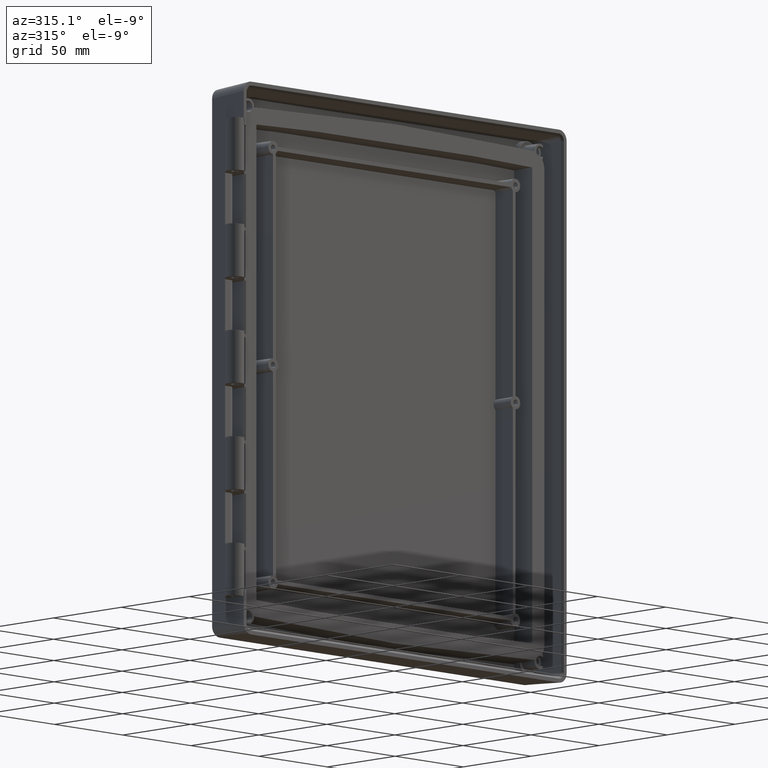
[diagram: clean part render]
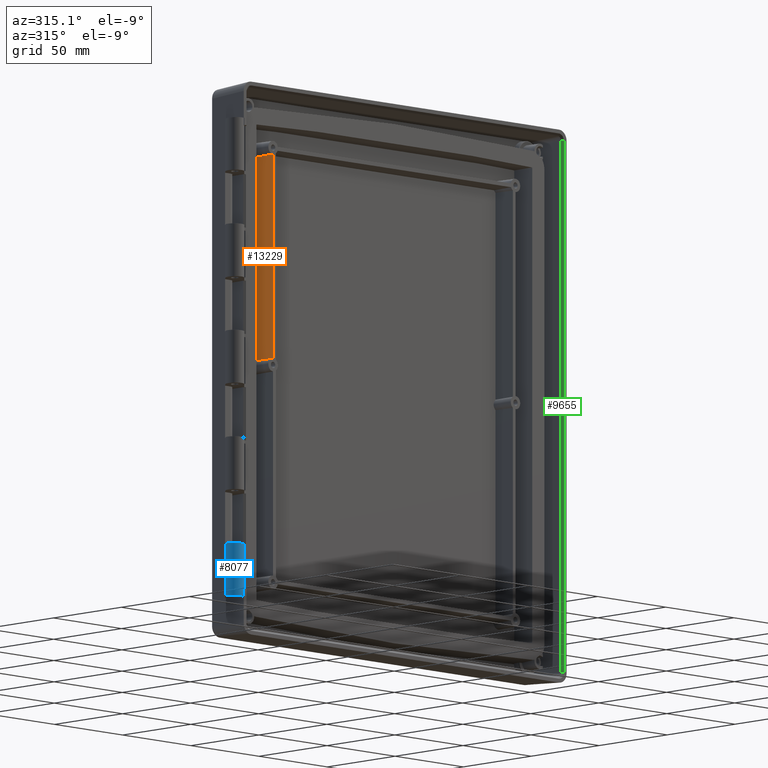
[diagram: same view with three faces highlighted in distinct colors, each labeled with its STEP entity id]
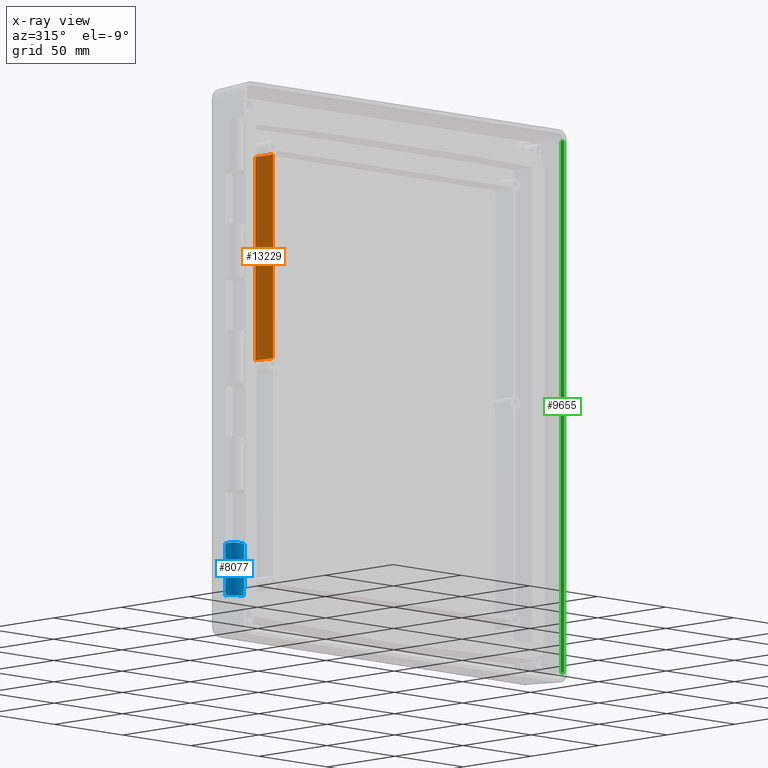
[diagram: x-ray of the same camera — body ghosted, the three highlighted faces saturated]
A machine part, auxiliary view with three faces highlighted in distinct colors.
The next image is the same camera in x-ray (body ghosted, the three faces saturated) — at least one of them is partly hidden behind the body in this view.
Their STEP definitions:

[orange] entity #13229 — the highlighted planar face has unit normal (-0.9998, -0.0175, 0).
#163=DIRECTION('',(0.E0,0.E0,-1.E0));
#164=VECTOR('',#163,1.069466839176E2);
#165=CARTESIAN_POINT('',(-8.921991636303E1,1.2599E1,1.106233419588E2));
#166=LINE('',#165,#164);
#5404=CARTESIAN_POINT('',(-8.921991636303E1,1.2599E1,1.106233419588E2));
#5405=CARTESIAN_POINT('',(-8.919531456273E1,1.118956380458E1,1.106458960446E2));
#5406=CARTESIAN_POINT('',(-8.914622203217E1,8.377054612737E0,1.106913173193E2));
#5407=CARTESIAN_POINT('',(-8.907291452086E1,4.177270102444E0,1.107604446341E2));
#5408=CARTESIAN_POINT('',(-8.902426759560E1,1.390289620731E0,1.108072289558E2));
#5409=CARTESIAN_POINT('',(-8.9E1,0.E0,1.108308071141E2));
#5435=DIRECTION('',(0.E0,0.E0,-1.E0));
#5436=VECTOR('',#5435,1.073616142282E2);
#5437=CARTESIAN_POINT('',(-8.9E1,0.E0,1.108308071141E2));
#5438=LINE('',#5437,#5436);
#5674=CARTESIAN_POINT('',(-8.921991636303E1,1.2599E1,3.676658041179E0));
#5675=CARTESIAN_POINT('',(-8.919531456273E1,1.118956380458E1,3.654103955431E0));
#5676=CARTESIAN_POINT('',(-8.914622203217E1,8.377054612737E0,3.608682680699E0));
#5677=CARTESIAN_POINT('',(-8.907291452086E1,4.177270102444E0,3.539555365864E0));
#5678=CARTESIAN_POINT('',(-8.902426759560E1,1.390289620731E0,3.492771044200E0));
#5679=CARTESIAN_POINT('',(-8.9E1,0.E0,3.469192885900E0));
#6712=CARTESIAN_POINT('',(-8.921991636303E1,1.2599E1,1.106233419588E2));
#6713=CARTESIAN_POINT('',(-8.921991636303E1,1.2599E1,3.676658041179E0));
#6714=VERTEX_POINT('',#6712);
#6715=VERTEX_POINT('',#6713);
#6729=VERTEX_POINT('',#5409);
#6742=VERTEX_POINT('',#5679);
#13215=CARTESIAN_POINT('',(-8.9E1,0.E0,1.206451589443E2));
#13216=DIRECTION('',(-9.998476951564E-1,-1.745240643728E-2,0.E0));
#13217=DIRECTION('',(0.E0,0.E0,-1.E0));
#13218=AXIS2_PLACEMENT_3D('',#13215,#13216,#13217);
#13219=PLANE('',#13218);
#13220=ORIENTED_EDGE('',*,*,#7523,.F.);
#13222=ORIENTED_EDGE('',*,*,#13221,.T.);
#13224=ORIENTED_EDGE('',*,*,#13223,.T.);
#13226=ORIENTED_EDGE('',*,*,#13225,.F.);
#13227=EDGE_LOOP('',(#13220,#13222,#13224,#13226));
#13228=FACE_OUTER_BOUND('',#13227,.F.);
#13229=ADVANCED_FACE('',(#13228),#13219,.T.);
#5410=B_SPLINE_CURVE_WITH_KNOTS('',3,(#5404,#5405,#5406,#5407,#5408,#5409),
.UNSPECIFIED.,.F.,.F.,(4,1,1,4),(0.E0,3.333333333333E-1,6.666666666667E-1,1.E0),
.UNSPECIFIED.);
#5680=B_SPLINE_CURVE_WITH_KNOTS('',3,(#5674,#5675,#5676,#5677,#5678,#5679),
.UNSPECIFIED.,.F.,.F.,(4,1,1,4),(0.E0,3.333333333333E-1,6.666666666667E-1,1.E0),
.UNSPECIFIED.);
#7523=EDGE_CURVE('',#6714,#6715,#166,.T.);
#13221=EDGE_CURVE('',#6714,#6729,#5410,.T.);
#13223=EDGE_CURVE('',#6729,#6742,#5438,.T.);
#13225=EDGE_CURVE('',#6715,#6742,#5680,.T.);

[blue] entity #8077 — the highlighted cylindrical surface (edge-blend (fillet) strip) has radius 4.9 mm, axis along (0, 0, -1).
#687=CARTESIAN_POINT('',(-1.236714999260E2,2.171787012678E-1,
-1.254297153929E2));
#688=CARTESIAN_POINT('',(-1.239530143235E2,-8.888304470473E-2,
-1.254457554093E2));
#689=CARTESIAN_POINT('',(-1.242467789355E2,-5.221114808791E-1,
-1.254684599496E2));
#690=CARTESIAN_POINT('',(-1.246349054390E2,-1.256088197796E0,
-1.255069260393E2));
#691=CARTESIAN_POINT('',(-1.248639186389E2,-2.003380272098E0,
-1.255460899574E2));
#692=CARTESIAN_POINT('',(-1.249746773096E2,-2.791133656298E0,
-1.255873743629E2));
#693=CARTESIAN_POINT('',(-1.249606209458E2,-3.734017482505E0,
-1.256367888104E2));
#694=CARTESIAN_POINT('',(-1.247255226159E2,-4.768100030984E0,
-1.256909827803E2));
#695=CARTESIAN_POINT('',(-1.241859736215E2,-5.837965822373E0,
-1.257470520706E2));
#696=CARTESIAN_POINT('',(-1.234087707498E2,-6.749937967678E0,
-1.257948465055E2));
#697=CARTESIAN_POINT('',(-1.225465697715E2,-7.367382989386E0,
-1.258272054279E2));
#698=CARTESIAN_POINT('',(-1.216827782683E2,-7.745715624935E0,
-1.258470330012E2));
#699=CARTESIAN_POINT('',(-1.209136158812E2,-7.948862750263E0,
-1.258576794909E2));
#700=CARTESIAN_POINT('',(-1.201359322171E2,-8.027320635099E0,
-1.258617912944E2));
#701=CARTESIAN_POINT('',(-1.193087752030E2,-7.953881340771E0,
-1.258579425041E2));
#702=CARTESIAN_POINT('',(-1.187955077284E2,-7.850929849477E0,
-1.258525470450E2));
#703=CARTESIAN_POINT('',(-1.184040579168E2,-7.709884340567E0,
-1.258451551631E2));
#895=CARTESIAN_POINT('',(-1.165947744643E2,-6.559340685211E0,
-9.811449371755E1));
#896=CARTESIAN_POINT('',(-1.167068865206E2,-6.671807822755E0,
-9.811645683873E1));
#897=CARTESIAN_POINT('',(-1.167494563025E2,-6.707040335770E0,
-9.811707182454E1));
#898=CARTESIAN_POINT('',(-1.168866062704E2,-6.831819868207E0,
-9.811924985938E1));
#899=CARTESIAN_POINT('',(-1.169837460578E2,-6.910205165138E0,
-9.812061807982E1));
#900=CARTESIAN_POINT('',(-1.170928492920E2,-6.996472326971E0,
-9.812212387874E1));
#901=CARTESIAN_POINT('',(-1.172141754020E2,-7.086280703673E0,
-9.812369148978E1));
#902=CARTESIAN_POINT('',(-1.173454816988E2,-7.177288253182E0,
-9.812528003247E1));
#903=CARTESIAN_POINT('',(-1.174826254735E2,-7.265168741396E0,
-9.812681399210E1));
#904=CARTESIAN_POINT('',(-1.176067517803E2,-7.339455077606E0,
-9.812811066492E1));
#905=CARTESIAN_POINT('',(-1.177594122493E2,-7.425093373638E0,
-9.812960548693E1));
#906=CARTESIAN_POINT('',(-1.179320666405E2,-7.513165050359E0,
-9.813114278377E1));
#907=CARTESIAN_POINT('',(-1.181201576890E2,-7.598910952209E0,
-9.813263948405E1));
#908=CARTESIAN_POINT('',(-1.183522028099E2,-7.693665550282E0,
-9.813429343172E1));
#909=CARTESIAN_POINT('',(-1.186154938983E2,-7.784157760548E0,
-9.813587297912E1));
#910=CARTESIAN_POINT('',(-1.189029810913E2,-7.863025405373E0,
-9.813724961898E1));
#911=CARTESIAN_POINT('',(-1.191693048046E2,-7.919792011620E0,
-9.813824048378E1));
#912=CARTESIAN_POINT('',(-1.194190904378E2,-7.959287887525E0,
-9.813892988686E1));
#913=CARTESIAN_POINT('',(-1.197340905804E2,-7.993102174324E0,
-9.813952011743E1));
#914=CARTESIAN_POINT('',(-1.200995774852E2,-8.005854673918E0,
-9.813974271314E1));
#915=CARTESIAN_POINT('',(-1.205040370061E2,-7.985521154220E0,
-9.813938779023E1));
#916=CARTESIAN_POINT('',(-1.208808556429E2,-7.936322237320E0,
-9.813852901994E1));
#917=CARTESIAN_POINT('',(-1.212343814997E2,-7.862798651707E0,
-9.813724566098E1));
#918=CARTESIAN_POINT('',(-1.215676111250E2,-7.768079695367E0,
-9.813559233545E1));
#919=CARTESIAN_POINT('',(-1.219876991522E2,-7.616496730734E0,
-9.813294644496E1));
#920=CARTESIAN_POINT('',(-1.224715124515E2,-7.383891812128E0,
-9.812888631100E1));
#921=CARTESIAN_POINT('',(-1.229941467488E2,-7.044257386145E0,
-9.812295797005E1));
#922=CARTESIAN_POINT('',(-1.234628015939E2,-6.648252175288E0,
-9.811604567338E1));
#923=CARTESIAN_POINT('',(-1.238787373805E2,-6.197192409624E0,
-9.810817239588E1));
#924=CARTESIAN_POINT('',(-1.242406937150E2,-5.689761859140E0,
-9.809931516268E1));
#925=CARTESIAN_POINT('',(-1.244940392756E2,-5.216479297453E0,
-9.809105398483E1));
#926=CARTESIAN_POINT('',(-1.246636783366E2,-4.803352277963E0,
-9.808384282588E1));
#927=CARTESIAN_POINT('',(-1.247727440274E2,-4.474538746284E0,
-9.807810336434E1));
#928=CARTESIAN_POINT('',(-1.248615134867E2,-4.124529843984E0,
-9.807199393623E1));
#929=CARTESIAN_POINT('',(-1.249269901663E2,-3.750196273115E0,
-9.806545991944E1));
#930=CARTESIAN_POINT('',(-1.249648259620E2,-3.346997305263E0,
-9.805842205528E1));
#931=CARTESIAN_POINT('',(-1.249679184879E2,-2.981301066322E0,
-9.805203880368E1));
#932=CARTESIAN_POINT('',(-1.249477818901E2,-2.665131788340E0,
-9.804652004841E1));
#933=CARTESIAN_POINT('',(-1.249191439158E2,-2.413869669257E0,
-9.804213425181E1));
#934=CARTESIAN_POINT('',(-1.248739678616E2,-2.145336820131E0,
-9.803744699349E1));
#935=CARTESIAN_POINT('',(-1.248076283283E2,-1.854702932902E0,
-9.803237396012E1));
#936=CARTESIAN_POINT('',(-1.247286269567E2,-1.587738854619E0,
-9.802771408480E1));
#937=CARTESIAN_POINT('',(-1.246440136102E2,-1.351806762962E0,
-9.802359587482E1));
#938=CARTESIAN_POINT('',(-1.245664963931E2,-1.160177741540E0,
-9.802025097781E1));
#939=CARTESIAN_POINT('',(-1.244859868623E2,-9.838701328960E-1,
-9.801717351705E1));
#940=CARTESIAN_POINT('',(-1.244070422826E2,-8.276430921498E-1,
-9.801444656391E1));
#941=CARTESIAN_POINT('',(-1.243382028942E2,-7.004151991704E-1,
-9.801222579278E1));
#942=CARTESIAN_POINT('',(-1.242563460365E2,-5.595931524803E-1,
-9.800976773481E1));
#943=CARTESIAN_POINT('',(-1.241711121827E2,-4.244676502874E-1,
-9.800740911040E1));
#944=CARTESIAN_POINT('',(-1.240866440089E2,-2.993648925672E-1,
-9.800522543364E1));
#945=CARTESIAN_POINT('',(-1.240051842913E2,-1.866270120943E-1,
-9.800325758661E1));
#946=CARTESIAN_POINT('',(-1.239310805847E2,-8.618259186704E-2,
-9.800150432274E1));
#947=CARTESIAN_POINT('',(-1.238123599313E2,5.624376924666E-2,
-9.799901826136E1));
#948=CARTESIAN_POINT('',(-1.237790040680E2,1.003004680610E-1,
-9.799824924882E1));
#949=CARTESIAN_POINT('',(-1.236714999260E2,2.171787012678E-1,
-9.799620913167E1));
#951=DIRECTION('',(0.E0,0.E0,1.E0));
#952=VECTOR('',#951,1.993198979942E1);
#953=CARTESIAN_POINT('',(-1.165947744643E2,-6.559340685211E0,
-1.180464835170E2));
#954=LINE('',#953,#952);
#955=DIRECTION('',(0.E0,0.E0,-1.E0));
#956=VECTOR('',#955,2.743350626120E1);
#957=CARTESIAN_POINT('',(-1.236714999260E2,2.171787012678E-1,
-9.799620913167E1));
#958=LINE('',#957,#956);
#2409=CARTESIAN_POINT('',(-1.184040579168E2,-7.709884340567E0,
-1.258451551631E2));
#2410=CARTESIAN_POINT('',(-1.182429871223E2,-7.651848006110E0,
-1.258421136077E2));
#2411=CARTESIAN_POINT('',(-1.180853991730E2,-7.585554948106E0,
-1.258386393358E2));
#2412=CARTESIAN_POINT('',(-1.179312929975E2,-7.511007706843E0,
-1.258347324804E2));
#2414=DIRECTION('',(0.E0,0.E0,1.E0));
#2415=VECTOR('',#2414,3.760359480574E0);
#2416=CARTESIAN_POINT('',(-1.179312929975E2,-7.511007706843E0,
-1.258347324804E2));
#2417=LINE('',#2416,#2415);
#2426=CARTESIAN_POINT('',(-1.179312929975E2,-7.511007706843E0,
-1.220743729998E2));
#2427=CARTESIAN_POINT('',(-1.174318102030E2,-7.269388159424E0,
-1.220617102559E2));
#2428=CARTESIAN_POINT('',(-1.169863271219E2,-6.952133468363E0,
-1.220450836421E2));
#2429=CARTESIAN_POINT('',(-1.165947744643E2,-6.559340685211E0,
-1.220244982446E2));
#2451=DIRECTION('',(0.E0,0.E0,1.E0));
#2452=VECTOR('',#2451,3.978014727640E0);
#2453=CARTESIAN_POINT('',(-1.165947744643E2,-6.559340685211E0,
-1.220244982446E2));
#2454=LINE('',#2453,#2452);
#6175=CARTESIAN_POINT('',(-1.236714999260E2,2.171787012678E-1,
-1.254297153929E2));
#6177=VERTEX_POINT('',#6175);
#6976=CARTESIAN_POINT('',(-1.179312929975E2,-7.511007706843E0,
-1.258347324804E2));
#6977=CARTESIAN_POINT('',(-1.179312929975E2,-7.511007706843E0,
-1.220743729998E2));
#6978=VERTEX_POINT('',#6976);
#6979=VERTEX_POINT('',#6977);
#6980=VERTEX_POINT('',#2429);
#6986=VERTEX_POINT('',#2409);
#6987=CARTESIAN_POINT('',(-1.165947744643E2,-6.559340685211E0,
-1.180464835170E2));
#6988=VERTEX_POINT('',#6987);
#6999=VERTEX_POINT('',#895);
#7000=VERTEX_POINT('',#949);
#8056=CARTESIAN_POINT('',(-1.200650715732E2,-3.1E0,1.4E1));
#8057=DIRECTION('',(0.E0,0.E0,-1.E0));
#8058=DIRECTION('',(-1.E0,0.E0,0.E0));
#8059=AXIS2_PLACEMENT_3D('',#8056,#8057,#8058);
#8060=CYLINDRICAL_SURFACE('',#8059,4.9E0);
#8061=ORIENTED_EDGE('',*,*,#7884,.F.);
#8063=ORIENTED_EDGE('',*,*,#8062,.F.);
#8065=ORIENTED_EDGE('',*,*,#8064,.F.);
#8067=ORIENTED_EDGE('',*,*,#8066,.F.);
#8069=ORIENTED_EDGE('',*,*,#8068,.F.);
#8071=ORIENTED_EDGE('',*,*,#8070,.F.);
#8072=ORIENTED_EDGE('',*,*,#7994,.F.);
#8074=ORIENTED_EDGE('',*,*,#8073,.F.);
#8075=EDGE_LOOP('',(#8061,#8063,#8065,#8067,#8069,#8071,#8072,#8074));
#8076=FACE_OUTER_BOUND('',#8075,.F.);
#8077=ADVANCED_FACE('',(#8076),#8060,.T.);
#704=B_SPLINE_CURVE_WITH_KNOTS('',3,(#687,#688,#689,#690,#691,#692,#693,#694,
#695,#696,#697,#698,#699,#700,#701,#702,#703),.UNSPECIFIED.,.F.,.F.,(4,1,1,1,1,
1,1,1,1,1,1,1,1,1,4),(0.E0,3.125E-2,6.25E-2,1.25E-1,1.875E-1,2.5E-1,3.75E-1,
5.E-1,6.25E-1,7.5E-1,8.125E-1,8.75E-1,9.375E-1,9.6875E-1,1.E0),.UNSPECIFIED.);
#950=B_SPLINE_CURVE_WITH_KNOTS('',3,(#895,#896,#897,#898,#899,#900,#901,#902,
#903,#904,#905,#906,#907,#908,#909,#910,#911,#912,#913,#914,#915,#916,#917,#918,
#919,#920,#921,#922,#923,#924,#925,#926,#927,#928,#929,#930,#931,#932,#933,#934,
#935,#936,#937,#938,#939,#940,#941,#942,#943,#944,#945,#946,#947,#948,#949),
.UNSPECIFIED.,.F.,.F.,(4,1,1,1,1,1,1,1,1,1,1,1,1,1,1,1,1,1,1,1,1,1,1,1,1,1,1,1,
1,1,1,1,1,1,1,1,1,1,1,1,1,1,1,1,1,1,1,1,1,1,1,1,4),(0.E0,9.765625E-4,
1.953125E-3,3.90625E-3,5.859375E-3,7.8125E-3,1.171875E-2,1.5625E-2,1.953125E-2,
2.34375E-2,3.125E-2,3.90625E-2,4.6875E-2,6.25E-2,7.8125E-2,9.375E-2,1.09375E-1,
1.25E-1,1.5625E-1,1.875E-1,2.1875E-1,2.5E-1,2.8125E-1,3.125E-1,3.75E-1,4.375E-1,
5.E-1,5.625E-1,6.25E-1,6.875E-1,7.1875E-1,7.5E-1,7.8125E-1,8.125E-1,8.4375E-1,
8.75E-1,8.90625E-1,9.0625E-1,9.21875E-1,9.375E-1,9.53125E-1,9.609375E-1,
9.6875E-1,9.765625E-1,9.8046875E-1,9.84375E-1,9.8828125E-1,9.921875E-1,
9.94140625E-1,9.9609375E-1,9.98046875E-1,9.990234375E-1,1.E0),.UNSPECIFIED.);
#2413=B_SPLINE_CURVE_WITH_KNOTS('',3,(#2409,#2410,#2411,#2412),.UNSPECIFIED.,
.F.,.F.,(4,4),(0.E0,1.E0),.UNSPECIFIED.);
#2430=B_SPLINE_CURVE_WITH_KNOTS('',3,(#2426,#2427,#2428,#2429),.UNSPECIFIED.,
.F.,.F.,(4,4),(0.E0,1.E0),.UNSPECIFIED.);
#7884=EDGE_CURVE('',#6999,#7000,#950,.T.);
#7994=EDGE_CURVE('',#6177,#6986,#704,.T.);
#8062=EDGE_CURVE('',#6988,#6999,#954,.T.);
#8064=EDGE_CURVE('',#6980,#6988,#2454,.T.);
#8066=EDGE_CURVE('',#6979,#6980,#2430,.T.);
#8068=EDGE_CURVE('',#6978,#6979,#2417,.T.);
#8070=EDGE_CURVE('',#6986,#6978,#2413,.T.);
#8073=EDGE_CURVE('',#7000,#6177,#958,.T.);

[green] entity #9655 — the highlighted planar face has unit normal (-0.7071, -0.7071, 0).
#2393=CARTESIAN_POINT('',(1.164151451963E2,-8.E0,1.398632651020E2));
#2577=DIRECTION('',(7.071067811865E-1,-7.071067811866E-1,-1.904393471559E-14));
#2578=VECTOR('',#2577,1.492428421693E0);
#2579=CARTESIAN_POINT('',(1.153598389389E2,-6.944693742585E0,1.398632651020E2));
#2580=LINE('',#2579,#2578);
#2588=CARTESIAN_POINT('',(1.153598389389E2,-6.944693742585E0,1.398632651020E2));
#2590=DIRECTION('',(0.E0,0.E0,1.E0));
#2591=VECTOR('',#2590,2.797265302039E2);
#2592=CARTESIAN_POINT('',(1.164151451963E2,-8.E0,-1.398632651020E2));
#2593=LINE('',#2592,#2591);
#2594=DIRECTION('',(0.E0,0.E0,-1.E0));
#2595=VECTOR('',#2594,2.797265302039E2);
#2596=CARTESIAN_POINT('',(1.153598389389E2,-6.944693742585E0,1.398632651020E2));
#2597=LINE('',#2596,#2595);
#2598=DIRECTION('',(-7.071067811865E-1,7.071067811866E-1,3.808786943117E-14));
#2599=VECTOR('',#2598,1.492428421693E0);
#2600=CARTESIAN_POINT('',(1.164151451963E2,-8.E0,-1.398632651020E2));
#2601=LINE('',#2600,#2599);
#6094=VERTEX_POINT('',#2393);
#6095=CARTESIAN_POINT('',(1.164151451963E2,-8.E0,-1.398632651020E2));
#6096=VERTEX_POINT('',#6095);
#6149=VERTEX_POINT('',#2588);
#6152=CARTESIAN_POINT('',(1.153598389389E2,-6.944693742585E0,
-1.398632651020E2));
#6153=VERTEX_POINT('',#6152);
#9642=CARTESIAN_POINT('',(1.153598389389E2,-6.944693742585E0,1.45E2));
#9643=DIRECTION('',(-7.071067811866E-1,-7.071067811865E-1,0.E0));
#9644=DIRECTION('',(7.071067811865E-1,-7.071067811866E-1,0.E0));
#9645=AXIS2_PLACEMENT_3D('',#9642,#9643,#9644);
#9646=PLANE('',#9645);
#9647=ORIENTED_EDGE('',*,*,#9635,.T.);
#9648=ORIENTED_EDGE('',*,*,#9376,.F.);
#9650=ORIENTED_EDGE('',*,*,#9649,.T.);
#9652=ORIENTED_EDGE('',*,*,#9651,.F.);
#9653=EDGE_LOOP('',(#9647,#9648,#9650,#9652));
#9654=FACE_OUTER_BOUND('',#9653,.F.);
#9655=ADVANCED_FACE('',(#9654),#9646,.T.);
#9376=EDGE_CURVE('',#6096,#6094,#2593,.T.);
#9635=EDGE_CURVE('',#6149,#6094,#2580,.T.);
#9649=EDGE_CURVE('',#6096,#6153,#2601,.T.);
#9651=EDGE_CURVE('',#6149,#6153,#2597,.T.);